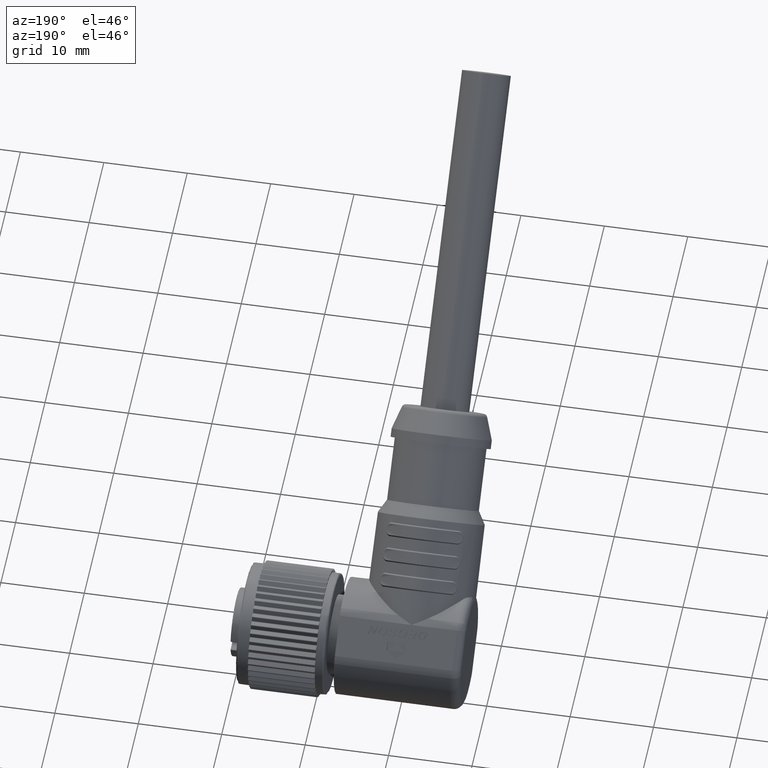
[diagram: clean part render]
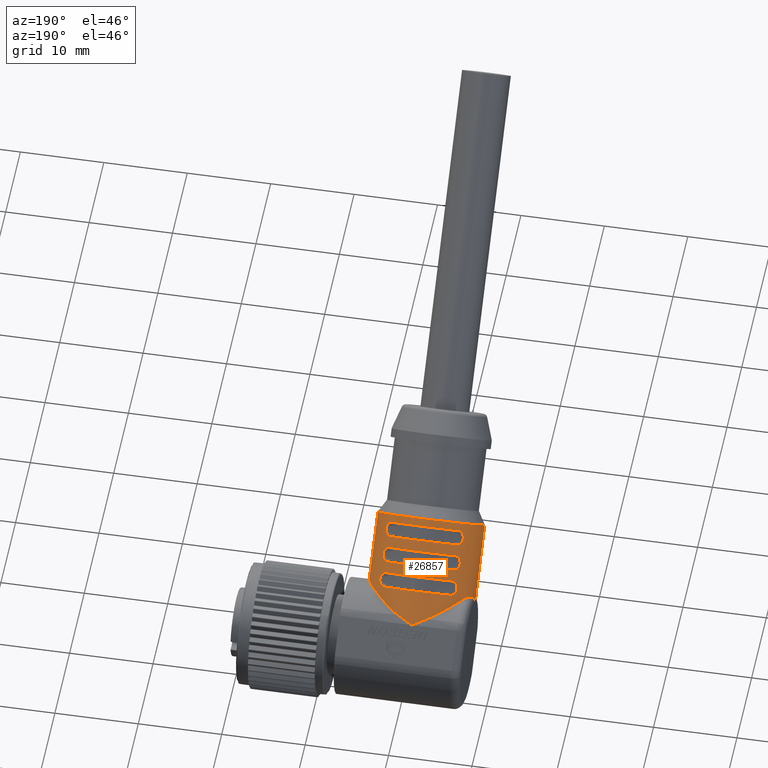
[diagram: same view with one face highlighted and labeled with its STEP entity id]
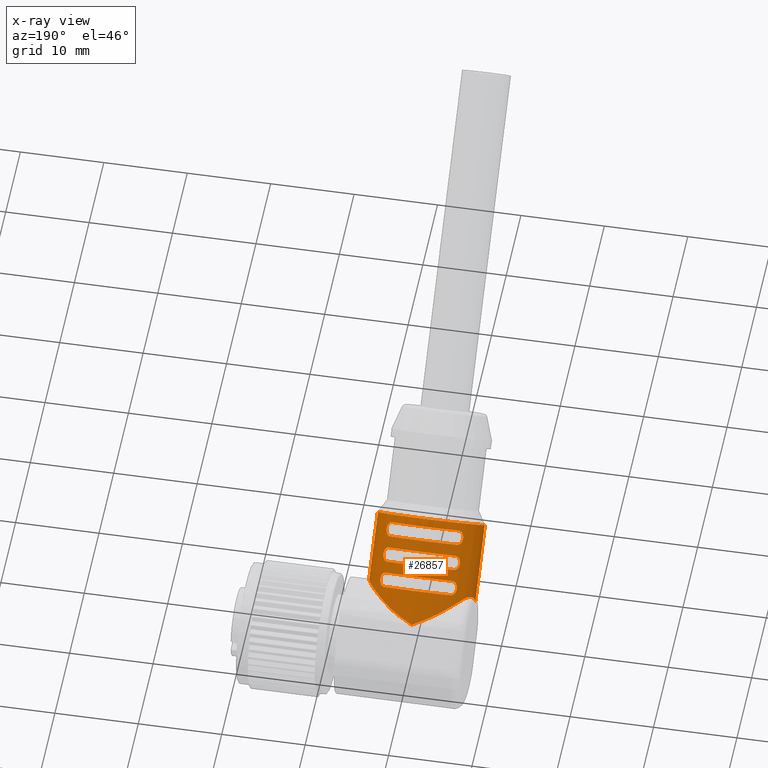
[diagram: x-ray of the same camera — body ghosted, the highlighted face saturated]
A machine part, auxiliary view. The second image highlights one B-rep face of the part: STEP entity #26857.
The next image is the same camera in x-ray: the body ghosted, the highlighted face saturated — about 0% of this face is hidden behind the body in this view.
In plain terms, the highlighted cylindrical surface (partial cylindrical patch) has radius 6.4 mm, axis along (0, -0.7071, 0.7071).
Its self-contained STEP definition (entity closure, byte-faithful):
#6003=CARTESIAN_POINT('',(-1.976379701677E1,2.004777970267E0,6.706777544916E0));
#6004=CARTESIAN_POINT('',(-1.994758970223E1,2.109272685243E0,6.675542171109E0));
#6005=CARTESIAN_POINT('',(-2.032190139354E1,2.312919365202E0,6.596203580795E0));
#6006=CARTESIAN_POINT('',(-2.090776745059E1,2.599160807562E0,6.425941768573E0));
#6007=CARTESIAN_POINT('',(-2.130159718548E1,2.767772238710E0,6.283194560477E0));
#6008=CARTESIAN_POINT('',(-2.15E1,2.846197837219E0,6.204768961969E0));
#6018=CARTESIAN_POINT('',(-1.51E1,-4.949747468306E0,4.949747468306E0));
#6019=CARTESIAN_POINT('',(-1.51E1,-4.827995683367E0,5.071499253245E0));
#6020=CARTESIAN_POINT('',(-1.511394076042E1,-4.574507147792E0,
5.306957713360E0));
#6021=CARTESIAN_POINT('',(-1.517709634846E1,-4.167486696150E0,
5.632383511641E0));
#6022=CARTESIAN_POINT('',(-1.528431523703E1,-3.730634147515E0,
5.931021850066E0));
#6023=CARTESIAN_POINT('',(-1.543751194377E1,-3.265025857831E0,
6.199847482546E0));
#6024=CARTESIAN_POINT('',(-1.564047796069E1,-2.767969792667E0,
6.437544391106E0));
#6025=CARTESIAN_POINT('',(-1.589691145338E1,-2.240019789496E0,
6.640201223142E0));
#6026=CARTESIAN_POINT('',(-1.621239857461E1,-1.680202966870E0,
6.803896639342E0));
#6027=CARTESIAN_POINT('',(-1.658900813109E1,-1.095487395323E0,
6.922520756241E0));
#6028=CARTESIAN_POINT('',(-1.703409474449E1,-4.858068417349E-1,
6.992454598333E0));
#6029=CARTESIAN_POINT('',(-1.755562657427E1,1.426735209681E-1,
7.007695995148E0));
#6030=CARTESIAN_POINT('',(-1.812109064298E1,7.378075034861E-1,
6.968703187986E0));
#6031=CARTESIAN_POINT('',(-1.869884241643E1,1.264025108305E0,6.890789637651E0));
#6032=CARTESIAN_POINT('',(-1.926432152789E1,1.699509168792E0,6.794264381372E0));
#6033=CARTESIAN_POINT('',(-1.960277980926E1,1.913232176905E0,6.734142250173E0));
#6034=CARTESIAN_POINT('',(-1.976379701677E1,2.004777970267E0,6.706777544916E0));
#6051=CARTESIAN_POINT('',(-1.51E1,-4.949747468306E0,4.949747468306E0));
#6088=CARTESIAN_POINT('',(-2.79E1,-4.242637687795E0,4.242644279817E0));
#6214=CARTESIAN_POINT('',(-2.789999336801E1,-4.235292383774E0,
4.253471069964E0));
#6277=CARTESIAN_POINT('',(-2.15E1,2.846197837219E0,6.204768961969E0));
#6278=CARTESIAN_POINT('',(-2.169848508600E1,2.767739718053E0,6.283227081134E0));
#6279=CARTESIAN_POINT('',(-2.209242445813E1,2.599074367432E0,6.426006787350E0));
#6280=CARTESIAN_POINT('',(-2.267829343061E1,2.312817193523E0,6.596250782727E0));
#6281=CARTESIAN_POINT('',(-2.305249294623E1,2.109225565056E0,6.675556275075E0));
#6282=CARTESIAN_POINT('',(-2.323620275281E1,2.004777984805E0,6.706777559454E0));
#6284=CARTESIAN_POINT('',(-2.79E1,-4.242637687795E0,4.242644279817E0));
#6285=CARTESIAN_POINT('',(-2.79E1,-4.242238171140E0,4.245905377865E0));
#6286=CARTESIAN_POINT('',(-2.790000331599E1,-4.238144074150E0,
4.251099110851E0));
#6287=CARTESIAN_POINT('',(-2.789999336801E1,-4.238567485320E0,
4.253069931100E0));
#6288=CARTESIAN_POINT('',(-2.789999336801E1,-4.235292383774E0,
4.253471069964E0));
#6290=CARTESIAN_POINT('',(-2.789999336801E1,-4.235292383774E0,
4.253471069964E0));
#6291=CARTESIAN_POINT('',(-2.789955653991E1,-4.109451025422E0,
4.543023223725E0));
#6292=CARTESIAN_POINT('',(-2.785713307294E1,-3.835313077587E0,
5.078626134563E0));
#6293=CARTESIAN_POINT('',(-2.769851790702E1,-3.379837375695E0,
5.715936186853E0));
#6294=CARTESIAN_POINT('',(-2.746968658417E1,-2.896172522148E0,
6.208063509177E0));
#6295=CARTESIAN_POINT('',(-2.719397943353E1,-2.392487334469E0,
6.556134558312E0));
#6296=CARTESIAN_POINT('',(-2.699821685830E1,-2.054443739555E0,
6.694076560597E0));
#6297=CARTESIAN_POINT('',(-2.69E1,-1.883780170271E0,6.741763290868E0));
#6299=CARTESIAN_POINT('',(-2.69E1,-1.883780170271E0,6.741763290868E0));
#6300=CARTESIAN_POINT('',(-2.680427133301E1,-1.717440131772E0,
6.788241942302E0));
#6301=CARTESIAN_POINT('',(-2.659314043191E1,-1.370581661253E0,
6.872039752459E0));
#6302=CARTESIAN_POINT('',(-2.620448059769E1,-8.044989083190E-1,
6.961678671417E0));
#6303=CARTESIAN_POINT('',(-2.575863943763E1,-2.282560595581E-1,
7.004118382893E0));
#6304=CARTESIAN_POINT('',(-2.526627630764E1,3.367511638769E-1,
6.999144860208E0));
#6305=CARTESIAN_POINT('',(-2.474395277647E1,8.658260581042E-1,
6.952388635347E0));
#6306=CARTESIAN_POINT('',(-2.421265524877E1,1.335455460209E0,6.876148304048E0));
#6307=CARTESIAN_POINT('',(-2.369459609317E1,1.726215579034E0,6.786851751957E0));
#6308=CARTESIAN_POINT('',(-2.338364783053E1,1.920948591727E0,6.731835692102E0));
#6309=CARTESIAN_POINT('',(-2.323620275281E1,2.004777984805E0,6.706777559454E0));
#6311=DIRECTION('',(-2.380318164796E-13,-7.071067811865E-1,7.071067811865E-1));
#6312=VECTOR('',#6311,8.000000000001E0);
#6313=CARTESIAN_POINT('',(-1.51E1,-4.949747468306E0,4.949747468306E0));
#6314=LINE('',#6313,#6312);
#6315=DIRECTION('',(-2.115838467347E-13,7.071071474099E-1,-7.071064149630E-1));
#6316=VECTOR('',#6315,8.999999580424E0);
#6317=CARTESIAN_POINT('',(-2.79E1,-1.060660171780E1,1.060660171780E1));
#6318=LINE('',#6317,#6316);
#6319=CARTESIAN_POINT('',(-2.15E1,-1.060660171780E1,1.060660171780E1));
#6320=DIRECTION('',(0.E0,7.071067811865E-1,-7.071067811865E-1));
#6321=DIRECTION('',(-1.E0,0.E0,0.E0));
#6322=AXIS2_PLACEMENT_3D('',#6319,#6320,#6321);
#6464=CARTESIAN_POINT('',(-2.15E1,-6.646803743154E0,6.646803743154E0));
#6465=DIRECTION('',(0.E0,7.071067811865E-1,-7.071067811865E-1));
#6466=DIRECTION('',(-6.207946932383E-1,5.543527526978E-1,5.543527526978E-1));
#6467=AXIS2_PLACEMENT_3D('',#6464,#6465,#6466);
#6524=CARTESIAN_POINT('',(-2.15E1,-7.848885271171E0,7.848885271171E0));
#6525=DIRECTION('',(0.E0,-7.071067811865E-1,7.071067811865E-1));
#6526=DIRECTION('',(6.207946932387E-1,5.543527526976E-1,5.543527526976E-1));
#6527=AXIS2_PLACEMENT_3D('',#6524,#6525,#6526);
#6534=CARTESIAN_POINT('',(-1.752691396327E1,-3.098946125889E0,
1.019466136042E1));
#6535=CARTESIAN_POINT('',(-1.745664742089E1,-3.138290315003E0,
1.015531720542E1));
#6536=CARTESIAN_POINT('',(-1.732559870219E1,-3.234327275575E0,
1.009799956888E1));
#6537=CARTESIAN_POINT('',(-1.714814529392E1,-3.432029369108E0,
1.007088766333E1));
#6538=CARTESIAN_POINT('',(-1.701168604039E1,-3.659085450547E0,
1.011247949971E1));
#6539=CARTESIAN_POINT('',(-1.692477101849E1,-3.893157946049E0,
1.022235175942E1));
#6540=CARTESIAN_POINT('',(-1.689552537072E1,-4.106311316238E0,
1.039254628274E1));
#6541=CARTESIAN_POINT('',(-1.692571492767E1,-4.275437140023E0,
1.060600592324E1));
#6542=CARTESIAN_POINT('',(-1.701307228876E1,-4.383973927483E0,
1.083929791280E1));
#6543=CARTESIAN_POINT('',(-1.714921527007E1,-4.424715419324E0,
1.106495453792E1));
#6544=CARTESIAN_POINT('',(-1.732587025054E1,-4.397545295990E0,
1.126152729889E1));
#6545=CARTESIAN_POINT('',(-1.745671465924E1,-4.340334160384E0,
1.135743634803E1));
#6546=CARTESIAN_POINT('',(-1.752691396327E1,-4.301027653906E0,
1.139674288844E1));
#6558=CARTESIAN_POINT('',(-2.547308603673E1,-4.301027653905E0,
1.139674288844E1));
#6559=CARTESIAN_POINT('',(-2.554335257952E1,-4.340371809138E0,
1.135739869909E1));
#6560=CARTESIAN_POINT('',(-2.567440129873E1,-4.397689445741E0,
1.126136173793E1));
#6561=CARTESIAN_POINT('',(-2.585185470652E1,-4.424801350910E0,
1.106365964453E1));
#6562=CARTESIAN_POINT('',(-2.598831395951E1,-4.383209514562E0,
1.083660356387E1));
#6563=CARTESIAN_POINT('',(-2.607522898132E1,-4.273337255273E0,
1.060253106893E1));
#6564=CARTESIAN_POINT('',(-2.610447462928E1,-4.103142732248E0,
1.038937769875E1));
#6565=CARTESIAN_POINT('',(-2.607428507253E1,-3.889683091821E0,
1.022025187475E1));
#6566=CARTESIAN_POINT('',(-2.598692771156E1,-3.656391102170E0,
1.011171508704E1));
#6567=CARTESIAN_POINT('',(-2.585078473030E1,-3.430734476894E0,
1.007097359500E1));
#6568=CARTESIAN_POINT('',(-2.567412974975E1,-3.234161715686E0,
1.009814371823E1));
#6569=CARTESIAN_POINT('',(-2.554328534088E1,-3.138252666368E0,
1.015535485387E1));
#6570=CARTESIAN_POINT('',(-2.547308603672E1,-3.098946125888E0,
1.019466136042E1));
#6601=CARTESIAN_POINT('',(-2.15E1,-4.525483399594E0,4.525483399594E0));
#6602=DIRECTION('',(0.E0,7.071067811865E-1,-7.071067811865E-1));
#6603=DIRECTION('',(-6.207946932380E-1,5.543527526979E-1,5.543527526979E-1));
#6604=AXIS2_PLACEMENT_3D('',#6601,#6602,#6603);
#6661=CARTESIAN_POINT('',(-1.752691396327E1,-9.776257823280E-1,
8.073341016860E0));
#6662=CARTESIAN_POINT('',(-1.745664742044E1,-1.016969971694E0,
8.033996861609E0));
#6663=CARTESIAN_POINT('',(-1.732559870116E1,-1.113006932904E0,
7.976679224962E0));
#6664=CARTESIAN_POINT('',(-1.714814529307E1,-1.310709026742E0,
7.949567319829E0));
#6665=CARTESIAN_POINT('',(-1.701168604004E1,-1.537765107804E0,
7.991159156475E0));
#6666=CARTESIAN_POINT('',(-1.692477101847E1,-1.771837602719E0,
8.101031416057E0));
#6667=CARTESIAN_POINT('',(-1.689552537076E1,-1.984990972508E0,
8.271225939060E0));
#6668=CARTESIAN_POINT('',(-1.692571492757E1,-2.154116796196E0,
8.484685579272E0));
#6669=CARTESIAN_POINT('',(-1.701307228857E1,-2.262653583830E0,
8.717977568882E0));
#6670=CARTESIAN_POINT('',(-1.714921527002E1,-2.303395075799E0,
8.943634194341E0));
#6671=CARTESIAN_POINT('',(-1.732587025075E1,-2.276224952375E0,
9.140206955524E0));
#6672=CARTESIAN_POINT('',(-1.745671465934E1,-2.219013816766E0,
9.236116004513E0));
#6673=CARTESIAN_POINT('',(-1.752691396328E1,-2.179707310345E0,
9.275422544877E0));
#6680=CARTESIAN_POINT('',(-2.15E1,-5.727564927611E0,5.727564927611E0));
#6681=DIRECTION('',(0.E0,-7.071067811865E-1,7.071067811865E-1));
#6682=DIRECTION('',(6.207946932378E-1,5.543527526981E-1,5.543527526981E-1));
#6683=AXIS2_PLACEMENT_3D('',#6680,#6681,#6682);
#6724=CARTESIAN_POINT('',(-2.547308603672E1,-2.179707310345E0,
9.275422544877E0));
#6725=CARTESIAN_POINT('',(-2.554335257941E1,-2.219051465531E0,
9.236078355607E0));
#6726=CARTESIAN_POINT('',(-2.567440129845E1,-2.276369102071E0,
9.140041394603E0));
#6727=CARTESIAN_POINT('',(-2.585185470622E1,-2.303481007361E0,
8.942339301374E0));
#6728=CARTESIAN_POINT('',(-2.598831395930E1,-2.261889171146E0,
8.715283220748E0));
#6729=CARTESIAN_POINT('',(-2.607522898121E1,-2.152016911973E0,
8.481210725777E0));
#6730=CARTESIAN_POINT('',(-2.610447462928E1,-1.981822389003E0,
8.268057355498E0));
#6731=CARTESIAN_POINT('',(-2.607428507260E1,-1.768362748448E0,
8.098931531270E0));
#6732=CARTESIAN_POINT('',(-2.598692771147E1,-1.535070758329E0,
7.990394743335E0));
#6733=CARTESIAN_POINT('',(-2.585078472974E1,-1.309414132505E0,
7.949653251370E0));
#6734=CARTESIAN_POINT('',(-2.567412974887E1,-1.112841371347E0,
7.976823374957E0));
#6735=CARTESIAN_POINT('',(-2.554328534049E1,-1.016932322595E0,
8.034034510540E0));
#6736=CARTESIAN_POINT('',(-2.547308603673E1,-9.776257823280E-1,
8.073341016860E0));
#6743=CARTESIAN_POINT('',(-2.15E1,-8.768124086713E0,8.768124086713E0));
#6744=DIRECTION('',(0.E0,7.071067811865E-1,-7.071067811865E-1));
#6745=DIRECTION('',(-6.207946932372E-1,5.543527526984E-1,5.543527526984E-1));
#6746=AXIS2_PLACEMENT_3D('',#6743,#6744,#6745);
#6803=CARTESIAN_POINT('',(-1.752691396328E1,-5.220266469446E0,
1.231598170398E1));
#6804=CARTESIAN_POINT('',(-1.745664742108E1,-5.259610658460E0,
1.227663754909E1));
#6805=CARTESIAN_POINT('',(-1.732559870266E1,-5.355647618741E0,
1.221931991261E1));
#6806=CARTESIAN_POINT('',(-1.714814529441E1,-5.553349712007E0,
1.219220800686E1));
#6807=CARTESIAN_POINT('',(-1.701168604072E1,-5.780405793412E0,
1.223379984305E1));
#6808=CARTESIAN_POINT('',(-1.692477101865E1,-6.014478288989E0,
1.234367210259E1));
#6809=CARTESIAN_POINT('',(-1.689552537072E1,-6.227631659329E0,
1.251386662582E1));
#6810=CARTESIAN_POINT('',(-1.692571492754E1,-6.396757483309E0,
1.272732626634E1));
#6811=CARTESIAN_POINT('',(-1.701307228859E1,-6.505294270963E0,
1.296061825605E1));
#6812=CARTESIAN_POINT('',(-1.714921526998E1,-6.546035762892E0,
1.318627488138E1));
#6813=CARTESIAN_POINT('',(-1.732587025057E1,-6.518865639554E0,
1.338284764248E1));
#6814=CARTESIAN_POINT('',(-1.745671465926E1,-6.461654503923E0,
1.347875669159E1));
#6815=CARTESIAN_POINT('',(-1.752691396327E1,-6.422347997467E0,
1.351806323199E1));
#6822=CARTESIAN_POINT('',(-2.15E1,-9.970205614730E0,9.970205614730E0));
#6823=DIRECTION('',(0.E0,-7.071067811865E-1,7.071067811865E-1));
#6824=DIRECTION('',(6.207946932397E-1,5.543527526969E-1,5.543527526969E-1));
#6825=AXIS2_PLACEMENT_3D('',#6822,#6823,#6824);
#6866=CARTESIAN_POINT('',(-2.547308603673E1,-6.422347997467E0,
1.351806323199E1));
#6867=CARTESIAN_POINT('',(-2.554335258003E1,-6.461692152988E0,
1.347871904236E1));
#6868=CARTESIAN_POINT('',(-2.567440130003E1,-6.519009789803E0,
1.338268208045E1));
#6869=CARTESIAN_POINT('',(-2.585185470848E1,-6.546121694489E0,
1.318497998555E1));
#6870=CARTESIAN_POINT('',(-2.598831396127E1,-6.504529857008E0,
1.295792390386E1));
#6871=CARTESIAN_POINT('',(-2.607522898222E1,-6.394657596578E0,
1.272385140891E1));
#6872=CARTESIAN_POINT('',(-2.610447462920E1,-6.224463073154E0,
1.251069803977E1));
#6873=CARTESIAN_POINT('',(-2.607428507188E1,-6.011003433221E0,
1.234157221709E1));
#6874=CARTESIAN_POINT('',(-2.598692771099E1,-5.777711444736E0,
1.223303543039E1));
#6875=CARTESIAN_POINT('',(-2.585078473032E1,-5.552054820601E0,
1.219229393866E1));
#6876=CARTESIAN_POINT('',(-2.567412975034E1,-5.355482059786E0,
1.221946406161E1));
#6877=CARTESIAN_POINT('',(-2.554328534117E1,-5.259573010084E0,
1.227667519727E1));
#6878=CARTESIAN_POINT('',(-2.547308603672E1,-5.220266469446E0,
1.231598170398E1));
#13589=CARTESIAN_POINT('',(-2.15E1,2.846197837219E0,6.204768961969E0));
#13590=VERTEX_POINT('',#13589);
#14061=CARTESIAN_POINT('',(-1.976379701677E1,2.004777970267E0,
6.706777544916E0));
#14062=VERTEX_POINT('',#14061);
#14065=VERTEX_POINT('',#6051);
#14068=VERTEX_POINT('',#6088);
#14069=CARTESIAN_POINT('',(-2.79E1,-1.060660171780E1,1.060660171780E1));
#14070=VERTEX_POINT('',#14069);
#14071=CARTESIAN_POINT('',(-1.51E1,-1.060660171780E1,1.060660171780E1));
#14072=VERTEX_POINT('',#14071);
#14100=VERTEX_POINT('',#6214);
#14103=CARTESIAN_POINT('',(-2.69E1,-1.883780170271E0,6.741763290868E0));
#14104=VERTEX_POINT('',#14103);
#14105=CARTESIAN_POINT('',(-2.323620275281E1,2.004777984805E0,
6.706777559454E0));
#14106=VERTEX_POINT('',#14105);
#14107=CARTESIAN_POINT('',(-2.547308603672E1,-3.098946125888E0,
1.019466136042E1));
#14108=CARTESIAN_POINT('',(-1.752691396328E1,-3.098946125888E0,
1.019466136042E1));
#14109=VERTEX_POINT('',#14107);
#14110=VERTEX_POINT('',#14108);
#14111=VERTEX_POINT('',#6558);
#14112=CARTESIAN_POINT('',(-1.752691396327E1,-4.301027653907E0,
1.139674288844E1));
#14113=VERTEX_POINT('',#14112);
#14114=CARTESIAN_POINT('',(-2.547308603672E1,-9.776257823273E-1,
8.073341016861E0));
#14115=CARTESIAN_POINT('',(-1.752691396328E1,-9.776257823273E-1,
8.073341016861E0));
#14116=VERTEX_POINT('',#14114);
#14117=VERTEX_POINT('',#14115);
#14118=VERTEX_POINT('',#6724);
#14119=CARTESIAN_POINT('',(-1.752691396328E1,-2.179707310343E0,
9.275422544879E0));
#14120=VERTEX_POINT('',#14119);
#14121=CARTESIAN_POINT('',(-2.547308603672E1,-5.220266469443E0,
1.231598170398E1));
#14122=CARTESIAN_POINT('',(-1.752691396328E1,-5.220266469443E0,
1.231598170398E1));
#14123=VERTEX_POINT('',#14121);
#14124=VERTEX_POINT('',#14122);
#14125=VERTEX_POINT('',#6866);
#14126=CARTESIAN_POINT('',(-1.752691396327E1,-6.422347997470E0,
1.351806323199E1));
#14127=VERTEX_POINT('',#14126);
#26810=CARTESIAN_POINT('',(-2.15E1,9.899494936612E-1,-9.899494936612E-1));
#26811=DIRECTION('',(0.E0,-7.071067811865E-1,7.071067811865E-1));
#26812=DIRECTION('',(1.E0,0.E0,0.E0));
#26813=AXIS2_PLACEMENT_3D('',#26810,#26811,#26812);
#26814=CYLINDRICAL_SURFACE('',#26813,6.4E0);
#26815=ORIENTED_EDGE('',*,*,#26698,.T.);
#26816=ORIENTED_EDGE('',*,*,#26778,.T.);
#26817=ORIENTED_EDGE('',*,*,#26791,.T.);
#26818=ORIENTED_EDGE('',*,*,#26803,.F.);
#26819=ORIENTED_EDGE('',*,*,#26530,.F.);
#26820=ORIENTED_EDGE('',*,*,#26545,.F.);
#26821=ORIENTED_EDGE('',*,*,#26582,.T.);
#26823=ORIENTED_EDGE('',*,*,#26822,.F.);
#26824=ORIENTED_EDGE('',*,*,#26578,.T.);
#26825=EDGE_LOOP('',(#26815,#26816,#26817,#26818,#26819,#26820,#26821,#26823,
#26824));
#26826=FACE_OUTER_BOUND('',#26825,.F.);
#26828=ORIENTED_EDGE('',*,*,#26827,.F.);
#26830=ORIENTED_EDGE('',*,*,#26829,.F.);
#26832=ORIENTED_EDGE('',*,*,#26831,.F.);
#26834=ORIENTED_EDGE('',*,*,#26833,.F.);
#26835=EDGE_LOOP('',(#26828,#26830,#26832,#26834));
#26836=FACE_BOUND('',#26835,.F.);
#26838=ORIENTED_EDGE('',*,*,#26837,.F.);
#26840=ORIENTED_EDGE('',*,*,#26839,.F.);
#26842=ORIENTED_EDGE('',*,*,#26841,.F.);
#26844=ORIENTED_EDGE('',*,*,#26843,.F.);
#26845=EDGE_LOOP('',(#26838,#26840,#26842,#26844));
#26846=FACE_BOUND('',#26845,.F.);
#26848=ORIENTED_EDGE('',*,*,#26847,.F.);
#26850=ORIENTED_EDGE('',*,*,#26849,.F.);
#26852=ORIENTED_EDGE('',*,*,#26851,.F.);
#26854=ORIENTED_EDGE('',*,*,#26853,.F.);
#26855=EDGE_LOOP('',(#26848,#26850,#26852,#26854));
#26856=FACE_BOUND('',#26855,.F.);
#26857=ADVANCED_FACE('',(#26826,#26836,#26846,#26856),#26814,.T.);
#6009=B_SPLINE_CURVE_WITH_KNOTS('',3,(#6003,#6004,#6005,#6006,#6007,#6008),
.UNSPECIFIED.,.F.,.F.,(4,1,1,4),(0.E0,3.333333333333E-1,6.666666666667E-1,1.E0),
.UNSPECIFIED.);
#6035=B_SPLINE_CURVE_WITH_KNOTS('',3,(#6018,#6019,#6020,#6021,#6022,#6023,#6024,
#6025,#6026,#6027,#6028,#6029,#6030,#6031,#6032,#6033,#6034),.UNSPECIFIED.,.F.,
.F.,(4,1,1,1,1,1,1,1,1,1,1,1,1,1,4),(0.E0,7.142857142857E-2,1.428571428571E-1,
2.142857142857E-1,2.857142857143E-1,3.571428571429E-1,4.285714285714E-1,5.E-1,
5.714285714286E-1,6.428571428571E-1,7.142857142857E-1,7.857142857143E-1,
8.571428571429E-1,9.285714285714E-1,1.E0),.UNSPECIFIED.);
#6283=B_SPLINE_CURVE_WITH_KNOTS('',3,(#6277,#6278,#6279,#6280,#6281,#6282),
.UNSPECIFIED.,.F.,.F.,(4,1,1,4),(0.E0,3.333333333333E-1,6.666666666667E-1,1.E0),
.UNSPECIFIED.);
#6289=B_SPLINE_CURVE_WITH_KNOTS('',3,(#6284,#6285,#6286,#6287,#6288),
.UNSPECIFIED.,.F.,.F.,(4,1,4),(0.E0,5.E-1,1.E0),.UNSPECIFIED.);
#6298=B_SPLINE_CURVE_WITH_KNOTS('',3,(#6290,#6291,#6292,#6293,#6294,#6295,#6296,
#6297),.UNSPECIFIED.,.F.,.F.,(4,1,1,1,1,4),(0.E0,2.E-1,4.E-1,6.E-1,8.E-1,1.E0),
.UNSPECIFIED.);
#6310=B_SPLINE_CURVE_WITH_KNOTS('',3,(#6299,#6300,#6301,#6302,#6303,#6304,#6305,
#6306,#6307,#6308,#6309),.UNSPECIFIED.,.F.,.F.,(4,1,1,1,1,1,1,1,4),(0.E0,
1.25E-1,2.5E-1,3.75E-1,5.E-1,6.25E-1,7.5E-1,8.75E-1,1.E0),.UNSPECIFIED.);
#6323=CIRCLE('',#6322,6.399999999996E0);
#6468=CIRCLE('',#6467,6.4E0);
#6528=CIRCLE('',#6527,6.4E0);
#6547=B_SPLINE_CURVE_WITH_KNOTS('',3,(#6534,#6535,#6536,#6537,#6538,#6539,#6540,
#6541,#6542,#6543,#6544,#6545,#6546),.UNSPECIFIED.,.F.,.F.,(4,1,1,1,1,1,1,1,1,1,
4),(0.E0,1.E-1,2.E-1,3.E-1,4.E-1,5.E-1,6.E-1,7.E-1,8.E-1,9.E-1,1.E0),
.UNSPECIFIED.);
#6571=B_SPLINE_CURVE_WITH_KNOTS('',3,(#6558,#6559,#6560,#6561,#6562,#6563,#6564,
#6565,#6566,#6567,#6568,#6569,#6570),.UNSPECIFIED.,.F.,.F.,(4,1,1,1,1,1,1,1,1,1,
4),(0.E0,1.E-1,2.E-1,3.E-1,4.E-1,5.E-1,6.E-1,7.E-1,8.E-1,9.E-1,1.E0),
.UNSPECIFIED.);
#6605=CIRCLE('',#6604,6.4E0);
#6674=B_SPLINE_CURVE_WITH_KNOTS('',3,(#6661,#6662,#6663,#6664,#6665,#6666,#6667,
#6668,#6669,#6670,#6671,#6672,#6673),.UNSPECIFIED.,.F.,.F.,(4,1,1,1,1,1,1,1,1,1,
4),(0.E0,1.E-1,2.E-1,3.E-1,4.E-1,5.E-1,6.E-1,7.E-1,8.E-1,9.E-1,1.E0),
.UNSPECIFIED.);
#6684=CIRCLE('',#6683,6.4E0);
#6737=B_SPLINE_CURVE_WITH_KNOTS('',3,(#6724,#6725,#6726,#6727,#6728,#6729,#6730,
#6731,#6732,#6733,#6734,#6735,#6736),.UNSPECIFIED.,.F.,.F.,(4,1,1,1,1,1,1,1,1,1,
4),(0.E0,1.E-1,2.E-1,3.E-1,4.E-1,5.E-1,6.E-1,7.E-1,8.E-1,9.E-1,1.E0),
.UNSPECIFIED.);
#6747=CIRCLE('',#6746,6.4E0);
#6816=B_SPLINE_CURVE_WITH_KNOTS('',3,(#6803,#6804,#6805,#6806,#6807,#6808,#6809,
#6810,#6811,#6812,#6813,#6814,#6815),.UNSPECIFIED.,.F.,.F.,(4,1,1,1,1,1,1,1,1,1,
4),(0.E0,1.E-1,2.E-1,3.E-1,4.E-1,5.E-1,6.E-1,7.E-1,8.E-1,9.E-1,1.E0),
.UNSPECIFIED.);
#6826=CIRCLE('',#6825,6.4E0);
#6879=B_SPLINE_CURVE_WITH_KNOTS('',3,(#6866,#6867,#6868,#6869,#6870,#6871,#6872,
#6873,#6874,#6875,#6876,#6877,#6878),.UNSPECIFIED.,.F.,.F.,(4,1,1,1,1,1,1,1,1,1,
4),(0.E0,1.E-1,2.E-1,3.E-1,4.E-1,5.E-1,6.E-1,7.E-1,8.E-1,9.E-1,1.E0),
.UNSPECIFIED.);
#26530=EDGE_CURVE('',#14062,#13590,#6009,.T.);
#26545=EDGE_CURVE('',#14065,#14062,#6035,.T.);
#26578=EDGE_CURVE('',#14070,#14068,#6318,.T.);
#26582=EDGE_CURVE('',#14065,#14072,#6314,.T.);
#26698=EDGE_CURVE('',#14068,#14100,#6289,.T.);
#26778=EDGE_CURVE('',#14100,#14104,#6298,.T.);
#26791=EDGE_CURVE('',#14104,#14106,#6310,.T.);
#26803=EDGE_CURVE('',#13590,#14106,#6283,.T.);
#26822=EDGE_CURVE('',#14070,#14072,#6323,.T.);
#26827=EDGE_CURVE('',#14109,#14110,#6468,.T.);
#26829=EDGE_CURVE('',#14111,#14109,#6571,.T.);
#26831=EDGE_CURVE('',#14113,#14111,#6528,.T.);
#26833=EDGE_CURVE('',#14110,#14113,#6547,.T.);
#26837=EDGE_CURVE('',#14116,#14117,#6605,.T.);
#26839=EDGE_CURVE('',#14118,#14116,#6737,.T.);
#26841=EDGE_CURVE('',#14120,#14118,#6684,.T.);
#26843=EDGE_CURVE('',#14117,#14120,#6674,.T.);
#26847=EDGE_CURVE('',#14123,#14124,#6747,.T.);
#26849=EDGE_CURVE('',#14125,#14123,#6879,.T.);
#26851=EDGE_CURVE('',#14127,#14125,#6826,.T.);
#26853=EDGE_CURVE('',#14124,#14127,#6816,.T.);